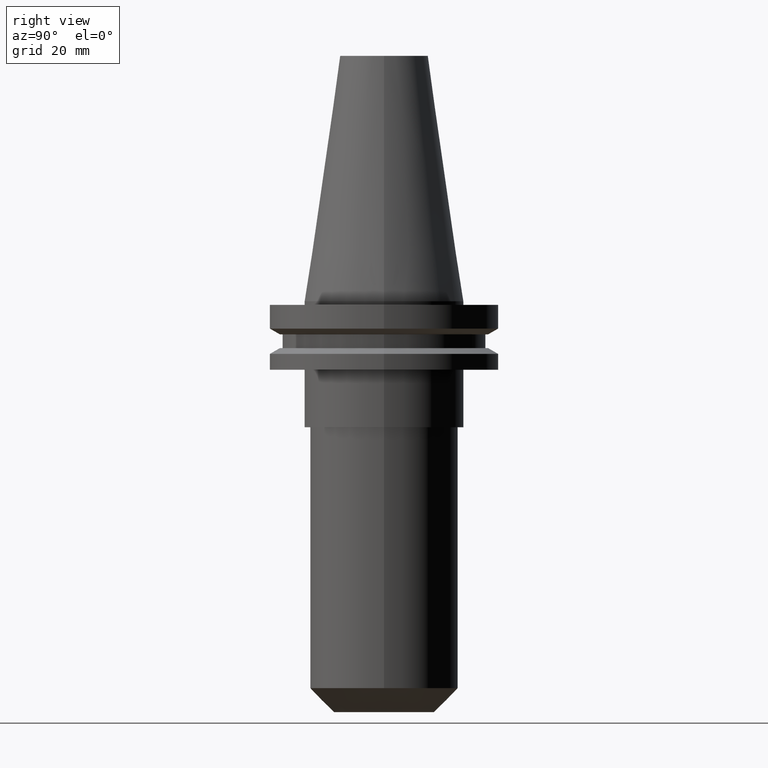
[diagram: clean part render]
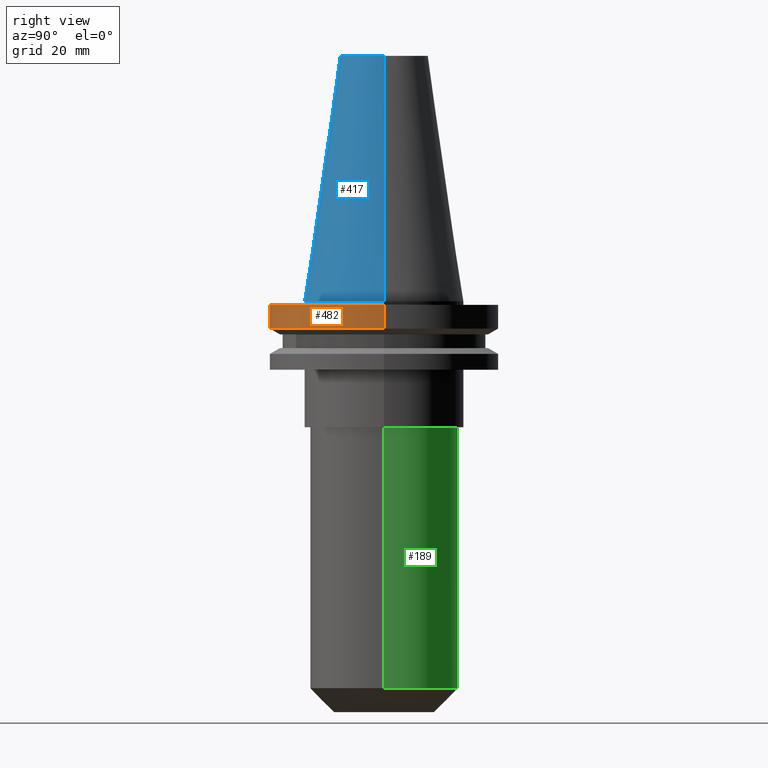
[diagram: same view with three faces highlighted in distinct colors, each labeled with its STEP entity id]
A machine part, right view with three faces highlighted in distinct colors.
Their STEP definitions:

[orange] entity #482 — the highlighted cylindrical surface (partial cylindrical patch) has radius 31.75 mm, axis along (-0, -0, 1).
#14 = DIRECTION ( 'NONE',  ( 1.000000000000000000, 0.000000000000000000, 0.000000000000000000 ) ) ;
#19 = ORIENTED_EDGE ( 'NONE', *, *, #727, .F. ) ;
#43 = CARTESIAN_POINT ( 'NONE',  ( 31.75000000000000000, 0.000000000000000000, 68.25000000000000000 ) ) ;
#83 = FACE_OUTER_BOUND ( 'NONE', #360, .T. ) ;
#95 = CARTESIAN_POINT ( 'NONE',  ( -31.75000000000000000, 3.888253587292846476E-15, 68.25000000000000000 ) ) ;
#127 = CIRCLE ( 'NONE', #243, 31.75000000000000000 ) ;
#161 = ORIENTED_EDGE ( 'NONE', *, *, #787, .T. ) ;
#217 = CARTESIAN_POINT ( 'NONE',  ( 0.000000000000000000, 0.000000000000000000, 68.25000000000000000 ) ) ;
#225 = AXIS2_PLACEMENT_3D ( 'NONE', #217, #791, #14 ) ;
#231 = LINE ( 'NONE', #95, #840 ) ;
#232 = VERTEX_POINT ( 'NONE', #431 ) ;
#243 = AXIS2_PLACEMENT_3D ( 'NONE', #762, #438, #696 ) ;
#244 = EDGE_CURVE ( 'NONE', #232, #681, #255, .T. ) ;
#247 = DIRECTION ( 'NONE',  ( 1.000000000000000000, 0.000000000000000000, 0.000000000000000000 ) ) ;
#255 = CIRCLE ( 'NONE', #353, 31.75000000000000000 ) ;
#256 = EDGE_CURVE ( 'NONE', #232, #338, #231, .T. ) ;
#316 = CARTESIAN_POINT ( 'NONE',  ( -31.75000000000000000, 3.888253587292846476E-15, -1.000000000000000888 ) ) ;
#338 = VERTEX_POINT ( 'NONE', #316 ) ;
#353 = AXIS2_PLACEMENT_3D ( 'NONE', #420, #686, #247 ) ;
#360 = EDGE_LOOP ( 'NONE', ( #741, #399, #161, #19 ) ) ;
#363 = CARTESIAN_POINT ( 'NONE',  ( 31.75000000000000000, 0.000000000000000000, -1.000000000000000888 ) ) ;
#380 = DIRECTION ( 'NONE',  ( -0.000000000000000000, -0.000000000000000000, 1.000000000000000000 ) ) ;
#399 = ORIENTED_EDGE ( 'NONE', *, *, #244, .T. ) ;
#420 = CARTESIAN_POINT ( 'NONE',  ( 0.000000000000000000, 0.000000000000000000, -7.605276606597335842 ) ) ;
#431 = CARTESIAN_POINT ( 'NONE',  ( -31.75000000000000000, 3.888253587292846476E-15, -7.605276606597335842 ) ) ;
#438 = DIRECTION ( 'NONE',  ( -0.000000000000000000, -0.000000000000000000, 1.000000000000000000 ) ) ;
#482 = ADVANCED_FACE ( 'NONE', ( #83 ), #608, .T. ) ;
#494 = CARTESIAN_POINT ( 'NONE',  ( 31.75000000000000000, 0.000000000000000000, -7.605276606597335842 ) ) ;
#606 = VECTOR ( 'NONE', #380, 1000.000000000000000 ) ;
#608 = CYLINDRICAL_SURFACE ( 'NONE', #225, 31.75000000000000000 ) ;
#636 = DIRECTION ( 'NONE',  ( -0.000000000000000000, -0.000000000000000000, 1.000000000000000000 ) ) ;
#681 = VERTEX_POINT ( 'NONE', #494 ) ;
#686 = DIRECTION ( 'NONE',  ( -0.000000000000000000, -0.000000000000000000, 1.000000000000000000 ) ) ;
#696 = DIRECTION ( 'NONE',  ( 1.000000000000000000, 0.000000000000000000, 0.000000000000000000 ) ) ;
#701 = VERTEX_POINT ( 'NONE', #363 ) ;
#727 = EDGE_CURVE ( 'NONE', #338, #701, #127, .T. ) ;
#741 = ORIENTED_EDGE ( 'NONE', *, *, #256, .F. ) ;
#762 = CARTESIAN_POINT ( 'NONE',  ( 0.000000000000000000, 0.000000000000000000, -1.000000000000000888 ) ) ;
#787 = EDGE_CURVE ( 'NONE', #681, #701, #849, .T. ) ;
#791 = DIRECTION ( 'NONE',  ( -0.000000000000000000, -0.000000000000000000, 1.000000000000000000 ) ) ;
#840 = VECTOR ( 'NONE', #636, 1000.000000000000000 ) ;
#849 = LINE ( 'NONE', #43, #606 ) ;

[blue] entity #417 — the highlighted conical surface has half-angle 8.297 deg.
#7 = EDGE_CURVE ( 'NONE', #409, #34, #39, .T. ) ;
#12 = VECTOR ( 'NONE', #33, 999.9999999999998863 ) ;
#29 = EDGE_LOOP ( 'NONE', ( #238, #419, #807, #570 ) ) ;
#31 = DIRECTION ( 'NONE',  ( 1.000000000000000000, 0.000000000000000000, 0.000000000000000000 ) ) ;
#33 = DIRECTION ( 'NONE',  ( 0.1443082272672999711, 1.767266086135276757E-17, -0.9895327864921755756 ) ) ;
#34 = VERTEX_POINT ( 'NONE', #451 ) ;
#39 = CIRCLE ( 'NONE', #498, 12.27178102086201150 ) ;
#49 = EDGE_CURVE ( 'NONE', #409, #300, #597, .T. ) ;
#52 = DIRECTION ( 'NONE',  ( -0.1443082272672999711, 0.000000000000000000, -0.9895327864921755756 ) ) ;
#53 = CARTESIAN_POINT ( 'NONE',  ( -12.27178102086201150, 0.000000000000000000, 68.25000000000000000 ) ) ;
#64 = CARTESIAN_POINT ( 'NONE',  ( 0.000000000000000000, 0.000000000000000000, 0.000000000000000000 ) ) ;
#77 = VECTOR ( 'NONE', #52, 999.9999999999998863 ) ;
#97 = AXIS2_PLACEMENT_3D ( 'NONE', #693, #357, #31 ) ;
#134 = CARTESIAN_POINT ( 'NONE',  ( 22.22500000000000142, 2.721777511104992849E-15, 0.000000000000000000 ) ) ;
#167 = AXIS2_PLACEMENT_3D ( 'NONE', #64, #332, #262 ) ;
#169 = VERTEX_POINT ( 'NONE', #134 ) ;
#238 = ORIENTED_EDGE ( 'NONE', *, *, #690, .F. ) ;
#262 = DIRECTION ( 'NONE',  ( -1.000000000000000000, 0.000000000000000000, 0.000000000000000000 ) ) ;
#300 = VERTEX_POINT ( 'NONE', #627 ) ;
#321 = EDGE_CURVE ( 'NONE', #300, #169, #499, .T. ) ;
#327 = FACE_OUTER_BOUND ( 'NONE', #29, .T. ) ;
#332 = DIRECTION ( 'NONE',  ( 0.000000000000000000, 0.000000000000000000, -1.000000000000000000 ) ) ;
#357 = DIRECTION ( 'NONE',  ( -0.000000000000000000, -0.000000000000000000, 1.000000000000000000 ) ) ;
#409 = VERTEX_POINT ( 'NONE', #53 ) ;
#417 = ADVANCED_FACE ( 'NONE', ( #327 ), #666, .T. ) ;
#419 = ORIENTED_EDGE ( 'NONE', *, *, #7, .F. ) ;
#429 = CARTESIAN_POINT ( 'NONE',  ( 22.22500000000000142, 2.721777511104992849E-15, 0.000000000000000000 ) ) ;
#451 = CARTESIAN_POINT ( 'NONE',  ( 12.27178102086201150, 2.112318622904291439E-15, 68.25000000000000000 ) ) ;
#453 = DIRECTION ( 'NONE',  ( -0.000000000000000000, -0.000000000000000000, 1.000000000000000000 ) ) ;
#498 = AXIS2_PLACEMENT_3D ( 'NONE', #518, #453, #850 ) ;
#499 = CIRCLE ( 'NONE', #97, 22.22500000000000142 ) ;
#518 = CARTESIAN_POINT ( 'NONE',  ( 0.000000000000000000, 0.000000000000000000, 68.25000000000000000 ) ) ;
#570 = ORIENTED_EDGE ( 'NONE', *, *, #321, .T. ) ;
#597 = LINE ( 'NONE', #647, #77 ) ;
#627 = CARTESIAN_POINT ( 'NONE',  ( -22.22500000000000142, 0.000000000000000000, 0.000000000000000000 ) ) ;
#647 = CARTESIAN_POINT ( 'NONE',  ( -22.22500000000000142, 0.000000000000000000, 0.000000000000000000 ) ) ;
#666 = CONICAL_SURFACE ( 'NONE', #167, 22.22500000000000142, 0.1448138465474119174 ) ;
#690 = EDGE_CURVE ( 'NONE', #34, #169, #755, .T. ) ;
#693 = CARTESIAN_POINT ( 'NONE',  ( 0.000000000000000000, 0.000000000000000000, 0.000000000000000000 ) ) ;
#755 = LINE ( 'NONE', #429, #12 ) ;
#807 = ORIENTED_EDGE ( 'NONE', *, *, #49, .T. ) ;
#850 = DIRECTION ( 'NONE',  ( 1.000000000000000000, 0.000000000000000000, 0.000000000000000000 ) ) ;

[green] entity #189 — the highlighted cylindrical surface (partial cylindrical patch) has radius 20.6375 mm, axis along (-0, -0, 1).
#25 = ORIENTED_EDGE ( 'NONE', *, *, #473, .F. ) ;
#68 = LINE ( 'NONE', #673, #599 ) ;
#72 = EDGE_LOOP ( 'NONE', ( #676, #430, #706, #25 ) ) ;
#78 = VECTOR ( 'NONE', #403, 1000.000000000000000 ) ;
#100 = CYLINDRICAL_SURFACE ( 'NONE', #333, 20.63749999999999929 ) ;
#110 = DIRECTION ( 'NONE',  ( -0.000000000000000000, -0.000000000000000000, 1.000000000000000000 ) ) ;
#143 = CARTESIAN_POINT ( 'NONE',  ( -20.63749999999999929, 2.527364831740350249E-15, 0.000000000000000000 ) ) ;
#144 = LINE ( 'NONE', #143, #78 ) ;
#183 = VERTEX_POINT ( 'NONE', #301 ) ;
#185 = AXIS2_PLACEMENT_3D ( 'NONE', #214, #799, #474 ) ;
#189 = ADVANCED_FACE ( 'NONE', ( #643 ), #100, .T. ) ;
#214 = CARTESIAN_POINT ( 'NONE',  ( 0.000000000000000000, 0.000000000000000000, -35.04999999999999716 ) ) ;
#223 = EDGE_CURVE ( 'NONE', #631, #183, #622, .T. ) ;
#229 = CARTESIAN_POINT ( 'NONE',  ( 20.63749999999999929, 0.000000000000000000, -107.5999999999999943 ) ) ;
#259 = CARTESIAN_POINT ( 'NONE',  ( -20.63749999999999929, 2.527364831740350249E-15, -35.04999999999999716 ) ) ;
#301 = CARTESIAN_POINT ( 'NONE',  ( -20.63749999999999929, 2.527364831740350249E-15, -107.5999999999999943 ) ) ;
#333 = AXIS2_PLACEMENT_3D ( 'NONE', #757, #707, #767 ) ;
#358 = VERTEX_POINT ( 'NONE', #259 ) ;
#365 = CARTESIAN_POINT ( 'NONE',  ( 0.000000000000000000, 0.000000000000000000, -107.5999999999999943 ) ) ;
#396 = AXIS2_PLACEMENT_3D ( 'NONE', #365, #110, #748 ) ;
#403 = DIRECTION ( 'NONE',  ( -0.000000000000000000, -0.000000000000000000, 1.000000000000000000 ) ) ;
#411 = CIRCLE ( 'NONE', #185, 20.63749999999999929 ) ;
#430 = ORIENTED_EDGE ( 'NONE', *, *, #587, .T. ) ;
#473 = EDGE_CURVE ( 'NONE', #631, #740, #68, .T. ) ;
#474 = DIRECTION ( 'NONE',  ( 1.000000000000000000, 0.000000000000000000, 0.000000000000000000 ) ) ;
#573 = EDGE_CURVE ( 'NONE', #358, #740, #411, .T. ) ;
#587 = EDGE_CURVE ( 'NONE', #183, #358, #144, .T. ) ;
#599 = VECTOR ( 'NONE', #680, 1000.000000000000000 ) ;
#622 = CIRCLE ( 'NONE', #396, 20.63749999999999929 ) ;
#631 = VERTEX_POINT ( 'NONE', #229 ) ;
#643 = FACE_OUTER_BOUND ( 'NONE', #72, .T. ) ;
#654 = CARTESIAN_POINT ( 'NONE',  ( 20.63749999999999929, 0.000000000000000000, -35.04999999999999716 ) ) ;
#673 = CARTESIAN_POINT ( 'NONE',  ( 20.63749999999999929, 0.000000000000000000, 0.000000000000000000 ) ) ;
#676 = ORIENTED_EDGE ( 'NONE', *, *, #223, .T. ) ;
#680 = DIRECTION ( 'NONE',  ( -0.000000000000000000, -0.000000000000000000, 1.000000000000000000 ) ) ;
#706 = ORIENTED_EDGE ( 'NONE', *, *, #573, .T. ) ;
#707 = DIRECTION ( 'NONE',  ( -0.000000000000000000, -0.000000000000000000, 1.000000000000000000 ) ) ;
#740 = VERTEX_POINT ( 'NONE', #654 ) ;
#748 = DIRECTION ( 'NONE',  ( 1.000000000000000000, 0.000000000000000000, 0.000000000000000000 ) ) ;
#757 = CARTESIAN_POINT ( 'NONE',  ( 0.000000000000000000, 0.000000000000000000, 0.000000000000000000 ) ) ;
#767 = DIRECTION ( 'NONE',  ( 1.000000000000000000, 0.000000000000000000, 0.000000000000000000 ) ) ;
#799 = DIRECTION ( 'NONE',  ( 0.000000000000000000, 0.000000000000000000, -1.000000000000000000 ) ) ;